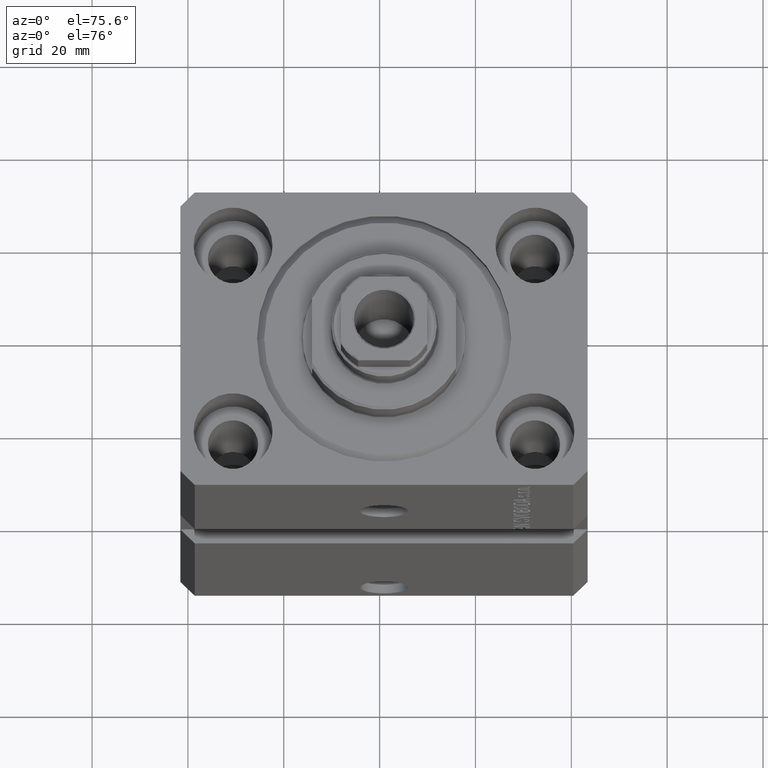
[diagram: clean part render]
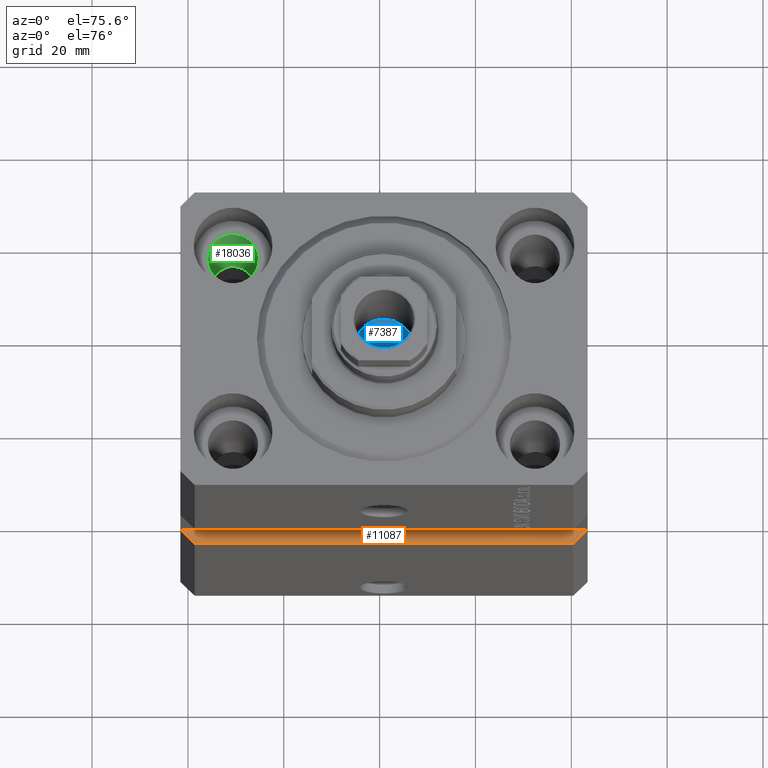
[diagram: same view with three faces highlighted in distinct colors, each labeled with its STEP entity id]
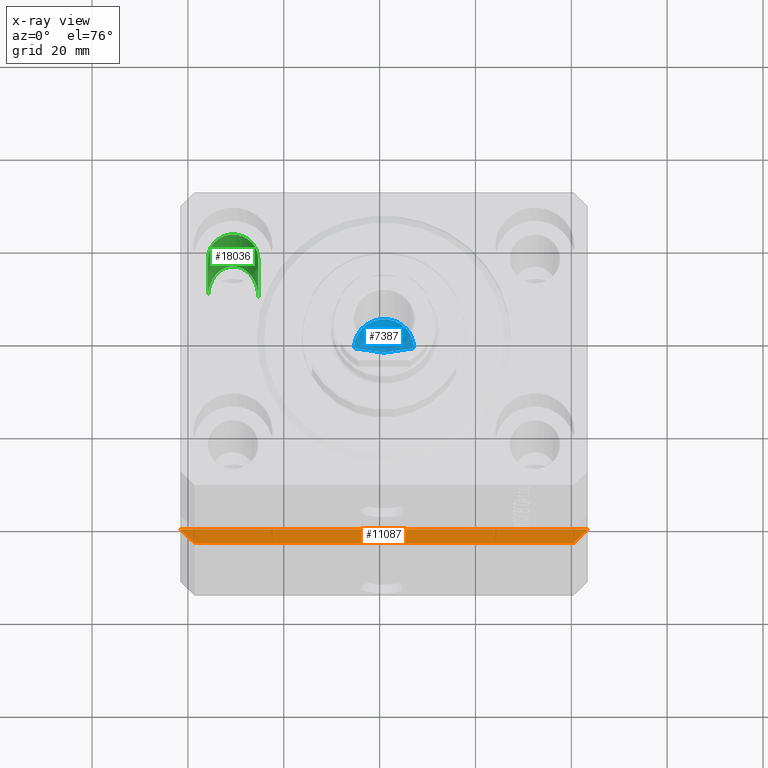
[diagram: x-ray of the same camera — body ghosted, the three highlighted faces saturated]
A machine part, auxiliary view with three faces highlighted in distinct colors.
The next image is the same camera in x-ray (body ghosted, the three faces saturated) — at least one of them is partly hidden behind the body in this view.
Their STEP definitions:

[orange] entity #11087 — the highlighted planar face has unit normal (0, 0, -1).
#1973 = CARTESIAN_POINT ( 'NONE',  ( 39.50000000000001421, -31.49999999999999289, -48.99999999999999289 ) ) ;
#2204 = ORIENTED_EDGE ( 'NONE', *, *, #9690, .T. ) ;
#2506 = VECTOR ( 'NONE', #31970, 1000.000000000000000 ) ;
#3315 = CARTESIAN_POINT ( 'NONE',  ( -42.50000000000000000, -28.50000000000000000, -48.99999999999999289 ) ) ;
#4286 = LINE ( 'NONE', #28560, #2506 ) ;
#6438 = VERTEX_POINT ( 'NONE', #1973 ) ;
#7228 = FACE_OUTER_BOUND ( 'NONE', #35987, .T. ) ;
#7615 = DIRECTION ( 'NONE',  ( 0.7071067811865471286, -0.7071067811865479058, 0.000000000000000000 ) ) ;
#9690 = EDGE_CURVE ( 'NONE', #6438, #13506, #21561, .T. ) ;
#10794 = LINE ( 'NONE', #3315, #37255 ) ;
#11087 = ADVANCED_FACE ( 'NONE', ( #7228 ), #42366, .F. ) ;
#12054 = CARTESIAN_POINT ( 'NONE',  ( -42.50000000000000000, -28.50000000000000711, -48.99999999999999289 ) ) ;
#13506 = VERTEX_POINT ( 'NONE', #44393 ) ;
#13565 = VERTEX_POINT ( 'NONE', #28075 ) ;
#14763 = CARTESIAN_POINT ( 'NONE',  ( 39.50000000000000711, -31.50000000000000000, -48.99999999999999289 ) ) ;
#14979 = DIRECTION ( 'NONE',  ( 0.7071067811865483499, 0.7071067811865466846, 0.000000000000000000 ) ) ;
#21072 = DIRECTION ( 'NONE',  ( 0.000000000000000000, 0.000000000000000000, -1.000000000000000000 ) ) ;
#21561 = LINE ( 'NONE', #14763, #39022 ) ;
#23196 = DIRECTION ( 'NONE',  ( 1.000000000000000000, 1.632680918566406300E-16, 0.000000000000000000 ) ) ;
#26078 = ORIENTED_EDGE ( 'NONE', *, *, #38550, .F. ) ;
#27248 = ORIENTED_EDGE ( 'NONE', *, *, #38155, .T. ) ;
#27911 = ORIENTED_EDGE ( 'NONE', *, *, #43607, .T. ) ;
#28075 = CARTESIAN_POINT ( 'NONE',  ( -39.50000000000000000, -31.50000000000000711, -48.99999999999999289 ) ) ;
#28560 = CARTESIAN_POINT ( 'NONE',  ( -42.50000000000000000, -28.50000000000000711, -48.99999999999999289 ) ) ;
#31970 = DIRECTION ( 'NONE',  ( 1.000000000000000000, 1.632680918566406300E-16, 0.000000000000000000 ) ) ;
#34071 = CARTESIAN_POINT ( 'NONE',  ( -42.50000000000000000, -31.50000000000000711, -48.99999999999999289 ) ) ;
#35987 = EDGE_LOOP ( 'NONE', ( #2204, #26078, #27911, #27248 ) ) ;
#36507 = VECTOR ( 'NONE', #23196, 1000.000000000000000 ) ;
#36925 = AXIS2_PLACEMENT_3D ( 'NONE', #38964, #21072, #39615 ) ;
#37255 = VECTOR ( 'NONE', #7615, 1000.000000000000000 ) ;
#38155 = EDGE_CURVE ( 'NONE', #13565, #6438, #43797, .T. ) ;
#38550 = EDGE_CURVE ( 'NONE', #41789, #13506, #4286, .T. ) ;
#38964 = CARTESIAN_POINT ( 'NONE',  ( -42.50000000000000000, -28.50000000000000711, -48.99999999999999289 ) ) ;
#39022 = VECTOR ( 'NONE', #14979, 1000.000000000000000 ) ;
#39615 = DIRECTION ( 'NONE',  ( -1.000000000000000000, 0.000000000000000000, -0.000000000000000000 ) ) ;
#41789 = VERTEX_POINT ( 'NONE', #12054 ) ;
#42366 = PLANE ( 'NONE',  #36925 ) ;
#43607 = EDGE_CURVE ( 'NONE', #41789, #13565, #10794, .T. ) ;
#43797 = LINE ( 'NONE', #34071, #36507 ) ;
#44393 = CARTESIAN_POINT ( 'NONE',  ( 42.50000000000001421, -28.49999999999999289, -48.99999999999999289 ) ) ;

[blue] entity #7387 — the highlighted conical surface has half-angle 59 deg.
#1254 = ORIENTED_EDGE ( 'NONE', *, *, #7784, .T. ) ;
#2675 = EDGE_CURVE ( 'NONE', #31205, #4195, #10996, .T. ) ;
#3871 = EDGE_LOOP ( 'NONE', ( #6493, #21241, #1254 ) ) ;
#4195 = VERTEX_POINT ( 'NONE', #20680 ) ;
#6493 = ORIENTED_EDGE ( 'NONE', *, *, #2675, .F. ) ;
#7387 = ADVANCED_FACE ( 'NONE', ( #28772 ), #31865, .F. ) ;
#7784 = EDGE_CURVE ( 'NONE', #21791, #4195, #28266, .T. ) ;
#8658 = EDGE_CURVE ( 'NONE', #31205, #21791, #14383, .T. ) ;
#10996 = LINE ( 'NONE', #24389, #36049 ) ;
#14262 = DIRECTION ( 'NONE',  ( -0.000000000000000000, -0.000000000000000000, 1.000000000000000000 ) ) ;
#14383 = LINE ( 'NONE', #31405, #44873 ) ;
#15285 = DIRECTION ( 'NONE',  ( -0.8571673007021122226, 1.049727191138618696E-16, 0.5150380749100541555 ) ) ;
#16095 = CARTESIAN_POINT ( 'NONE',  ( -7.434177670704979810E-15, 0.000000000000000000, 69.84462113107775849 ) ) ;
#17663 = CARTESIAN_POINT ( 'NONE',  ( 0.000000000000000000, 0.000000000000000000, 73.59999999999999432 ) ) ;
#19440 = DIRECTION ( 'NONE',  ( 1.000000000000000000, 0.000000000000000000, 0.000000000000000000 ) ) ;
#20680 = CARTESIAN_POINT ( 'NONE',  ( -6.249999999999993783, 7.654042494670949718E-16, 73.59999999999999432 ) ) ;
#21241 = ORIENTED_EDGE ( 'NONE', *, *, #8658, .T. ) ;
#21429 = DIRECTION ( 'NONE',  ( 0.8571673007021122226, 0.000000000000000000, 0.5150380749100541555 ) ) ;
#21791 = VERTEX_POINT ( 'NONE', #32132 ) ;
#24389 = CARTESIAN_POINT ( 'NONE',  ( -6.249999999999993783, 7.654042494670949718E-16, 73.59999999999999432 ) ) ;
#25219 = DIRECTION ( 'NONE',  ( -0.000000000000000000, -0.000000000000000000, 1.000000000000000000 ) ) ;
#26804 = AXIS2_PLACEMENT_3D ( 'NONE', #43079, #25219, #28386 ) ;
#28266 = CIRCLE ( 'NONE', #26804, 6.249999999999993783 ) ;
#28386 = DIRECTION ( 'NONE',  ( 1.000000000000000000, 0.000000000000000000, 0.000000000000000000 ) ) ;
#28772 = FACE_OUTER_BOUND ( 'NONE', #3871, .T. ) ;
#31205 = VERTEX_POINT ( 'NONE', #16095 ) ;
#31405 = CARTESIAN_POINT ( 'NONE',  ( 6.249999999999993783, 0.000000000000000000, 73.59999999999999432 ) ) ;
#31865 = CONICAL_SURFACE ( 'NONE', #34731, 6.249999999999993783, 1.029744258676654534 ) ;
#32132 = CARTESIAN_POINT ( 'NONE',  ( 6.249999999999993783, 0.000000000000000000, 73.59999999999999432 ) ) ;
#34731 = AXIS2_PLACEMENT_3D ( 'NONE', #17663, #14262, #19440 ) ;
#36049 = VECTOR ( 'NONE', #15285, 1000.000000000000114 ) ;
#43079 = CARTESIAN_POINT ( 'NONE',  ( 0.000000000000000000, 0.000000000000000000, 73.59999999999999432 ) ) ;
#44873 = VECTOR ( 'NONE', #21429, 1000.000000000000114 ) ;

[green] entity #18036 — the highlighted cylindrical surface (edge-blend (fillet) strip) has radius 5.25 mm, axis along (0, 0, 1).
#151 = CARTESIAN_POINT ( 'NONE',  ( -26.25000000000000355, 30.49999999999999645, -32.50000000000001421 ) ) ;
#3981 = CARTESIAN_POINT ( 'NONE',  ( -31.50000000000000000, 20.00000000000000000, -11.00000000000000000 ) ) ;
#4407 = DIRECTION ( 'NONE',  ( 1.000000000000000000, 0.000000000000000000, 0.000000000000000000 ) ) ;
#4832 = DIRECTION ( 'NONE',  ( -0.000000000000000000, -0.000000000000000000, 1.000000000000000000 ) ) ;
#5708 = DIRECTION ( 'NONE',  ( -0.000000000000000000, -0.000000000000000000, 1.000000000000000000 ) ) ;
#6476 = ORIENTED_EDGE ( 'NONE', *, *, #36548, .T. ) ;
#7365 = VERTEX_POINT ( 'NONE', #35353 ) ;
#8454 = CYLINDRICAL_SURFACE ( 'NONE', #10722, 5.250000000000000888 ) ;
#10049 = VECTOR ( 'NONE', #5708, 1000.000000000000000 ) ;
#10722 = AXIS2_PLACEMENT_3D ( 'NONE', #32078, #4832, #4407 ) ;
#11063 = ORIENTED_EDGE ( 'NONE', *, *, #21263, .F. ) ;
#12525 = CARTESIAN_POINT ( 'NONE',  ( -36.75000000000000000, 20.00000000000000000, -93.00000000000000000 ) ) ;
#14251 = LINE ( 'NONE', #14935, #30654 ) ;
#14662 = CARTESIAN_POINT ( 'NONE',  ( -36.74999999999999289, 30.49999999999999645, -32.50000000000001421 ) ) ;
#14935 = CARTESIAN_POINT ( 'NONE',  ( -26.25000000000000000, 20.00000000000000000, -93.00000000000000000 ) ) ;
#18036 = ADVANCED_FACE ( 'NONE', ( #18672 ), #8454, .F. ) ;
#18672 = FACE_OUTER_BOUND ( 'NONE', #19332, .T. ) ;
#19332 = EDGE_LOOP ( 'NONE', ( #11063, #40203, #6476, #36292 ) ) ;
#21026 = CIRCLE ( 'NONE', #35505, 5.250000000000000888 ) ;
#21263 = EDGE_CURVE ( 'NONE', #32656, #28118, #22295, .T. ) ;
#21618 = CARTESIAN_POINT ( 'NONE',  ( -26.24999999999999645, 20.00000000000000355, -43.00000000000000000 ) ) ;
#22295 = LINE ( 'NONE', #12525, #10049 ) ;
#24470 = DIRECTION ( 'NONE',  ( -0.000000000000000000, -0.000000000000000000, 1.000000000000000000 ) ) ;
#24637 = DIRECTION ( 'NONE',  ( 0.000000000000000000, 0.000000000000000000, 1.000000000000000000 ) ) ;
#24862 = DIRECTION ( 'NONE',  ( 1.000000000000000000, 0.000000000000000000, 0.000000000000000000 ) ) ;
#27070 = EDGE_CURVE ( 'NONE', #7365, #28118, #21026, .T. ) ;
#28041 = CARTESIAN_POINT ( 'NONE',  ( -26.24999999999999645, 20.00000000000000355, -43.00000000000000000 ) ) ;
#28118 = VERTEX_POINT ( 'NONE', #36157 ) ;
#30654 = VECTOR ( 'NONE', #24470, 1000.000000000000000 ) ;
#31670 = CARTESIAN_POINT ( 'NONE',  ( -36.74999999999999289, 20.00000000000000355, -43.00000000000000000 ) ) ;
#32078 = CARTESIAN_POINT ( 'NONE',  ( -31.50000000000000000, 20.00000000000000000, -93.00000000000000000 ) ) ;
#32656 = VERTEX_POINT ( 'NONE', #42326 ) ;
#35353 = CARTESIAN_POINT ( 'NONE',  ( -26.25000000000000000, 20.00000000000000000, -11.00000000000000000 ) ) ;
#35505 = AXIS2_PLACEMENT_3D ( 'NONE', #3981, #24637, #24862 ) ;
#36157 = CARTESIAN_POINT ( 'NONE',  ( -36.75000000000000000, 20.00000000000000000, -11.00000000000000000 ) ) ;
#36292 = ORIENTED_EDGE ( 'NONE', *, *, #27070, .T. ) ;
#36362 =( BOUNDED_CURVE ( )  B_SPLINE_CURVE ( 3, ( #31670, #14662, #151, #28041 ),
 .UNSPECIFIED., .F., .F. ) 
 B_SPLINE_CURVE_WITH_KNOTS ( ( 4, 4 ),
 ( 4.712388980384689674, 7.853981633974482790 ),
 .UNSPECIFIED. ) 
 CURVE ( )  GEOMETRIC_REPRESENTATION_ITEM ( )  RATIONAL_B_SPLINE_CURVE ( ( 1.000000000000000000, 0.3333333333333333703, 0.3333333333333333703, 1.000000000000000000 ) ) 
 REPRESENTATION_ITEM ( '' )  );
#36548 = EDGE_CURVE ( 'NONE', #42672, #7365, #14251, .T. ) ;
#37719 = EDGE_CURVE ( 'NONE', #32656, #42672, #36362, .T. ) ;
#40203 = ORIENTED_EDGE ( 'NONE', *, *, #37719, .T. ) ;
#42326 = CARTESIAN_POINT ( 'NONE',  ( -36.74999999999999289, 20.00000000000000355, -43.00000000000000000 ) ) ;
#42672 = VERTEX_POINT ( 'NONE', #21618 ) ;